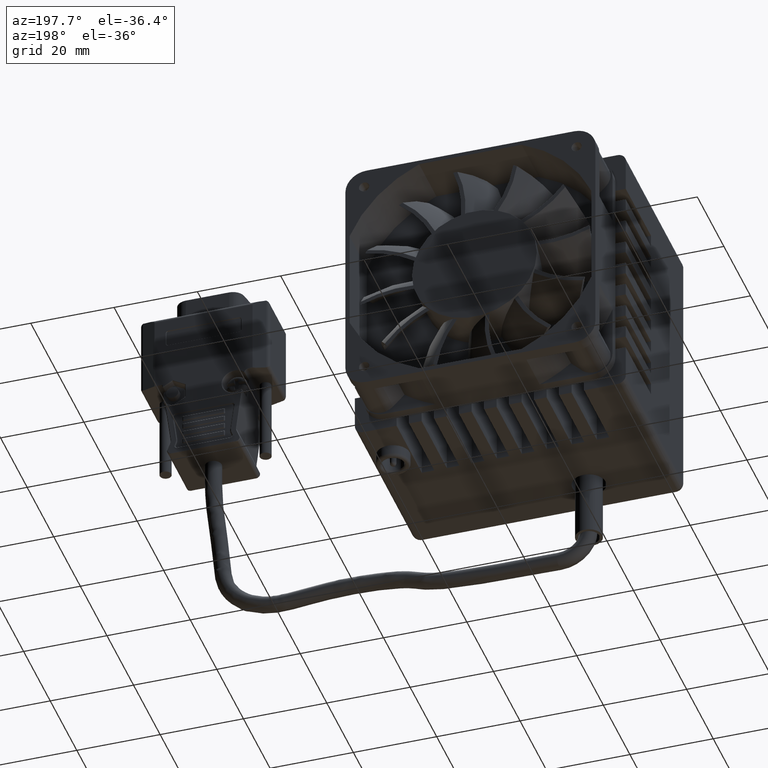
[diagram: clean part render]
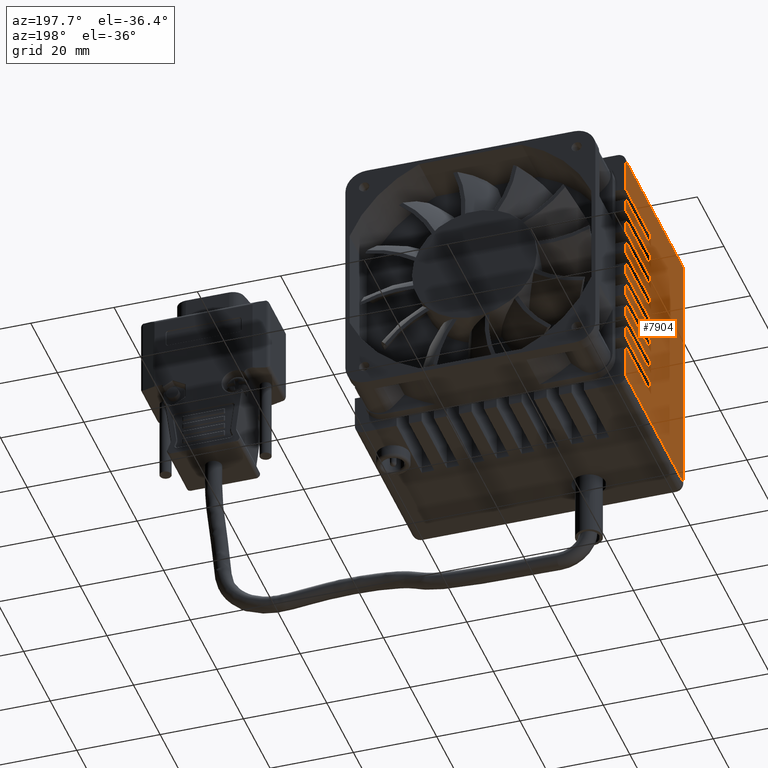
[diagram: same view with one face highlighted and labeled with its STEP entity id]
A machine part, auxiliary view. The second image highlights one B-rep face of the part: STEP entity #7904.
In plain terms, the highlighted planar face has unit normal (-1, 0, 0).
Its self-contained STEP definition (entity closure, byte-faithful):
#65 = ORIENTED_EDGE ( 'NONE', *, *, #32055, .F. ) ;
#122 = EDGE_CURVE ( 'NONE', #25049, #22166, #22653, .T. ) ;
#260 = EDGE_CURVE ( 'NONE', #17363, #12395, #30855, .T. ) ;
#360 = AXIS2_PLACEMENT_3D ( 'NONE', #11790, #5264, #30973 ) ;
#483 = VERTEX_POINT ( 'NONE', #12916 ) ;
#635 = ORIENTED_EDGE ( 'NONE', *, *, #1064, .T. ) ;
#1041 = ORIENTED_EDGE ( 'NONE', *, *, #1189, .T. ) ;
#1064 = EDGE_CURVE ( 'NONE', #11608, #25049, #12203, .T. ) ;
#1189 = EDGE_CURVE ( 'NONE', #23974, #7961, #35549, .T. ) ;
#1286 = LINE ( 'NONE', #13691, #21871 ) ;
#1504 = CARTESIAN_POINT ( 'NONE',  ( -32.50000000000000000, 45.00000000000000000, -7.500000000000000000 ) ) ;
#1684 = VERTEX_POINT ( 'NONE', #12925 ) ;
#2060 = VERTEX_POINT ( 'NONE', #1504 ) ;
#2125 = CARTESIAN_POINT ( 'NONE',  ( -32.50000000000000000, 26.00000000000000000, 4.500000000000000000 ) ) ;
#2454 = VECTOR ( 'NONE', #40085, 1000.000000000000000 ) ;
#2701 = ORIENTED_EDGE ( 'NONE', *, *, #34756, .T. ) ;
#2745 = LINE ( 'NONE', #15372, #4095 ) ;
#2858 = VECTOR ( 'NONE', #25431, 1000.000000000000000 ) ;
#2901 = VECTOR ( 'NONE', #5673, 1000.000000000000000 ) ;
#2943 = EDGE_CURVE ( 'NONE', #6915, #15015, #41395, .T. ) ;
#3039 = DIRECTION ( 'NONE',  ( 0.000000000000000000, 0.000000000000000000, 1.000000000000000000 ) ) ;
#3541 = CARTESIAN_POINT ( 'NONE',  ( -32.50000000000000000, 26.00000000000000000, -4.500000000000000000 ) ) ;
#3613 = EDGE_CURVE ( 'NONE', #28526, #36698, #24064, .T. ) ;
#3784 = VERTEX_POINT ( 'NONE', #41106 ) ;
#4095 = VECTOR ( 'NONE', #28615, 1000.000000000000000 ) ;
#4447 = LINE ( 'NONE', #10555, #36541 ) ;
#4940 = VERTEX_POINT ( 'NONE', #27863 ) ;
#5216 = CARTESIAN_POINT ( 'NONE',  ( -32.50000000000000000, 26.00000000000000000, -6.500000000000000000 ) ) ;
#5264 = DIRECTION ( 'NONE',  ( -1.000000000000000000, 0.000000000000000000, 0.000000000000000000 ) ) ;
#5498 = LINE ( 'NONE', #34336, #19218 ) ;
#5673 = DIRECTION ( 'NONE',  ( 0.000000000000000000, -1.000000000000000000, 0.000000000000000000 ) ) ;
#6203 = LINE ( 'NONE', #19046, #28752 ) ;
#6268 = LINE ( 'NONE', #34907, #2858 ) ;
#6315 = CARTESIAN_POINT ( 'NONE',  ( -32.50000000000000000, 26.00000000000000000, 10.50000000000000000 ) ) ;
#6586 = LINE ( 'NONE', #20286, #19145 ) ;
#6806 = ORIENTED_EDGE ( 'NONE', *, *, #9635, .F. ) ;
#6915 = VERTEX_POINT ( 'NONE', #3541 ) ;
#6960 = VECTOR ( 'NONE', #34460, 1000.000000000000000 ) ;
#7020 = VECTOR ( 'NONE', #38239, 1000.000000000000000 ) ;
#7221 = VECTOR ( 'NONE', #25167, 1000.000000000000000 ) ;
#7460 = CARTESIAN_POINT ( 'NONE',  ( -32.50000000000000000, 26.00000000000000000, -16.50000000000000000 ) ) ;
#7530 = CARTESIAN_POINT ( 'NONE',  ( -32.50000000000000000, 26.00000000000000000, -19.50000000000000000 ) ) ;
#7637 = DIRECTION ( 'NONE',  ( 0.000000000000000000, 0.000000000000000000, -1.000000000000000000 ) ) ;
#7904 = ADVANCED_FACE ( 'NONE', ( #14112 ), #21078, .T. ) ;
#7961 = VERTEX_POINT ( 'NONE', #2125 ) ;
#7988 = EDGE_CURVE ( 'NONE', #8340, #14324, #14958, .T. ) ;
#8156 = EDGE_CURVE ( 'NONE', #2060, #15015, #29046, .T. ) ;
#8196 = CARTESIAN_POINT ( 'NONE',  ( -32.50000000000000000, 26.00000000000000000, -10.50000000000000000 ) ) ;
#8236 = VERTEX_POINT ( 'NONE', #22713 ) ;
#8294 = EDGE_CURVE ( 'NONE', #19701, #38694, #24183, .T. ) ;
#8340 = VERTEX_POINT ( 'NONE', #8196 ) ;
#8385 = LINE ( 'NONE', #40784, #20003 ) ;
#8535 = CARTESIAN_POINT ( 'NONE',  ( -32.50000000000000000, 45.00000000000000000, 32.50000000000000000 ) ) ;
#8611 = VECTOR ( 'NONE', #37750, 1000.000000000000000 ) ;
#8767 = CARTESIAN_POINT ( 'NONE',  ( -32.50000000000000000, 13.00000000000000000, 16.50000000000000000 ) ) ;
#8987 = DIRECTION ( 'NONE',  ( 0.000000000000000000, 1.000000000000000000, 0.000000000000000000 ) ) ;
#9560 = VERTEX_POINT ( 'NONE', #27191 ) ;
#9635 = EDGE_CURVE ( 'NONE', #9560, #14324, #41212, .T. ) ;
#9873 = VECTOR ( 'NONE', #20465, 1000.000000000000000 ) ;
#10151 = ORIENTED_EDGE ( 'NONE', *, *, #25467, .T. ) ;
#10299 = VECTOR ( 'NONE', #20337, 1000.000000000000000 ) ;
#10318 = CARTESIAN_POINT ( 'NONE',  ( -32.50000000000000000, 45.00000000000000000, 13.50000000000000000 ) ) ;
#10491 = ORIENTED_EDGE ( 'NONE', *, *, #15572, .T. ) ;
#10496 = LINE ( 'NONE', #13658, #17984 ) ;
#10515 = VERTEX_POINT ( 'NONE', #41219 ) ;
#10545 = CARTESIAN_POINT ( 'NONE',  ( -32.50000000000000000, 13.00000000000000000, -7.500000000000000000 ) ) ;
#10555 = CARTESIAN_POINT ( 'NONE',  ( -32.50000000000000000, 0.000000000000000000, 30.50000000000000000 ) ) ;
#10597 = LINE ( 'NONE', #23454, #32753 ) ;
#10861 = DIRECTION ( 'NONE',  ( 0.000000000000000000, 0.000000000000000000, 1.000000000000000000 ) ) ;
#10956 = ORIENTED_EDGE ( 'NONE', *, *, #12197, .T. ) ;
#11190 = EDGE_CURVE ( 'NONE', #24607, #33151, #20730, .T. ) ;
#11209 = VERTEX_POINT ( 'NONE', #24924 ) ;
#11295 = VECTOR ( 'NONE', #23401, 1000.000000000000000 ) ;
#11608 = VERTEX_POINT ( 'NONE', #25428 ) ;
#11790 = CARTESIAN_POINT ( 'NONE',  ( -32.50000000000000000, 0.000000000000000000, -32.50000000000000000 ) ) ;
#11857 = CARTESIAN_POINT ( 'NONE',  ( -32.50000000000000000, 45.00000000000000000, 32.50000000000000000 ) ) ;
#11921 = ORIENTED_EDGE ( 'NONE', *, *, #19180, .T. ) ;
#12139 = DIRECTION ( 'NONE',  ( 0.000000000000000000, -1.000000000000000000, 0.000000000000000000 ) ) ;
#12197 = EDGE_CURVE ( 'NONE', #35666, #14911, #36717, .T. ) ;
#12203 = LINE ( 'NONE', #34513, #2901 ) ;
#12317 = CARTESIAN_POINT ( 'NONE',  ( -32.50000000000000000, 26.00000000000000000, -15.50000000000000000 ) ) ;
#12332 = CARTESIAN_POINT ( 'NONE',  ( -32.50000000000000000, 22.50000000000000000, -4.500000000000000000 ) ) ;
#12395 = VERTEX_POINT ( 'NONE', #30426 ) ;
#12461 = ORIENTED_EDGE ( 'NONE', *, *, #28118, .F. ) ;
#12687 = DIRECTION ( 'NONE',  ( 0.000000000000000000, -1.000000000000000000, 0.000000000000000000 ) ) ;
#12734 = DIRECTION ( 'NONE',  ( 0.000000000000000000, 1.000000000000000000, 0.000000000000000000 ) ) ;
#12830 = VECTOR ( 'NONE', #30987, 1000.000000000000000 ) ;
#12916 = CARTESIAN_POINT ( 'NONE',  ( -32.50000000000000000, 45.00000000000000000, 22.50000000000000000 ) ) ;
#12925 = CARTESIAN_POINT ( 'NONE',  ( -32.50000000000000000, 45.00000000000000000, 16.50000000000000000 ) ) ;
#12989 = ORIENTED_EDGE ( 'NONE', *, *, #31139, .F. ) ;
#13143 = CARTESIAN_POINT ( 'NONE',  ( -32.50000000000000000, 22.50000000000000000, 1.500000000000029976 ) ) ;
#13244 = LINE ( 'NONE', #16611, #15052 ) ;
#13658 = CARTESIAN_POINT ( 'NONE',  ( -32.50000000000000000, 13.00000000000000000, -13.50000000000000000 ) ) ;
#13691 = CARTESIAN_POINT ( 'NONE',  ( -32.50000000000000000, 26.00000000000000000, -21.50000000000000000 ) ) ;
#13808 = ORIENTED_EDGE ( 'NONE', *, *, #34358, .T. ) ;
#13937 = CARTESIAN_POINT ( 'NONE',  ( -32.50000000000000000, 26.00000000000000000, -27.50000000000000000 ) ) ;
#14112 = FACE_OUTER_BOUND ( 'NONE', #40168, .T. ) ;
#14324 = VERTEX_POINT ( 'NONE', #36608 ) ;
#14500 = ORIENTED_EDGE ( 'NONE', *, *, #24751, .T. ) ;
#14911 = VERTEX_POINT ( 'NONE', #7460 ) ;
#14957 = ORIENTED_EDGE ( 'NONE', *, *, #38003, .T. ) ;
#14958 = LINE ( 'NONE', #37261, #21905 ) ;
#15015 = VERTEX_POINT ( 'NONE', #31054 ) ;
#15052 = VECTOR ( 'NONE', #16218, 1000.000000000000000 ) ;
#15173 = CARTESIAN_POINT ( 'NONE',  ( -32.50000000000000000, 45.00000000000000000, -16.50000000000000000 ) ) ;
#15230 = LINE ( 'NONE', #11857, #8611 ) ;
#15238 = VECTOR ( 'NONE', #30228, 1000.000000000000000 ) ;
#15372 = CARTESIAN_POINT ( 'NONE',  ( -32.50000000000000000, 33.75000000000000000, -22.50000000000000000 ) ) ;
#15516 = CARTESIAN_POINT ( 'NONE',  ( -32.50000000000000000, 45.00000000000000000, 32.50000000000000000 ) ) ;
#15572 = EDGE_CURVE ( 'NONE', #9560, #35666, #10496, .T. ) ;
#15712 = DIRECTION ( 'NONE',  ( 0.000000000000000000, -1.000000000000000000, 0.000000000000000000 ) ) ;
#15908 = CARTESIAN_POINT ( 'NONE',  ( -32.50000000000000000, 22.50000000000000000, 19.50000000000000000 ) ) ;
#16218 = DIRECTION ( 'NONE',  ( 0.000000000000000000, 1.000000000000000000, 0.000000000000000000 ) ) ;
#16281 = DIRECTION ( 'NONE',  ( 0.000000000000000000, 0.000000000000000000, 1.000000000000000000 ) ) ;
#16551 = VECTOR ( 'NONE', #7637, 1000.000000000000000 ) ;
#16611 = CARTESIAN_POINT ( 'NONE',  ( -32.50000000000000000, 22.50000000000000000, 13.50000000000000000 ) ) ;
#16669 = CARTESIAN_POINT ( 'NONE',  ( -32.50000000000000000, 26.00000000000000000, 1.500000000000000000 ) ) ;
#16791 = ORIENTED_EDGE ( 'NONE', *, *, #8156, .F. ) ;
#16928 = DIRECTION ( 'NONE',  ( 0.000000000000000000, 0.000000000000000000, -1.000000000000000000 ) ) ;
#17089 = VECTOR ( 'NONE', #8987, 1000.000000000000000 ) ;
#17188 = EDGE_CURVE ( 'NONE', #28418, #11209, #28737, .T. ) ;
#17363 = VERTEX_POINT ( 'NONE', #17691 ) ;
#17409 = CARTESIAN_POINT ( 'NONE',  ( -32.50000000000000000, 45.00000000000000000, 19.50000000000000000 ) ) ;
#17691 = CARTESIAN_POINT ( 'NONE',  ( -32.50000000000000000, 45.00000000000000000, -30.50000000000000000 ) ) ;
#17984 = VECTOR ( 'NONE', #36613, 1000.000000000000000 ) ;
#18533 = DIRECTION ( 'NONE',  ( 0.000000000000000000, 0.000000000000000000, 1.000000000000000000 ) ) ;
#18996 = ORIENTED_EDGE ( 'NONE', *, *, #2943, .T. ) ;
#19046 = CARTESIAN_POINT ( 'NONE',  ( -32.50000000000000000, 45.00000000000000000, 32.50000000000000000 ) ) ;
#19145 = VECTOR ( 'NONE', #16281, 1000.000000000000000 ) ;
#19180 = EDGE_CURVE ( 'NONE', #483, #19701, #8385, .T. ) ;
#19218 = VECTOR ( 'NONE', #18533, 1000.000000000000000 ) ;
#19323 = VECTOR ( 'NONE', #26084, 1000.000000000000000 ) ;
#19346 = DIRECTION ( 'NONE',  ( 0.000000000000000000, 0.000000000000000000, 1.000000000000000000 ) ) ;
#19701 = VERTEX_POINT ( 'NONE', #25341 ) ;
#20003 = VECTOR ( 'NONE', #15712, 1000.000000000000000 ) ;
#20036 = ORIENTED_EDGE ( 'NONE', *, *, #35107, .T. ) ;
#20049 = CARTESIAN_POINT ( 'NONE',  ( -32.50000000000000000, 45.00000000000000000, -1.499999999999970024 ) ) ;
#20286 = CARTESIAN_POINT ( 'NONE',  ( -32.50000000000000000, 45.00000000000000000, 32.50000000000000000 ) ) ;
#20337 = DIRECTION ( 'NONE',  ( 0.000000000000000000, 0.000000000000000000, -1.000000000000000000 ) ) ;
#20465 = DIRECTION ( 'NONE',  ( 0.000000000000000000, 1.000000000000000000, 0.000000000000000000 ) ) ;
#20532 = ORIENTED_EDGE ( 'NONE', *, *, #31001, .T. ) ;
#20692 = EDGE_CURVE ( 'NONE', #1684, #10515, #24963, .T. ) ;
#20730 = LINE ( 'NONE', #27253, #38285 ) ;
#21078 = PLANE ( 'NONE',  #360 ) ;
#21088 = CARTESIAN_POINT ( 'NONE',  ( -32.50000000000000000, 45.00000000000000000, 32.50000000000000000 ) ) ;
#21185 = DIRECTION ( 'NONE',  ( 0.000000000000000000, -1.000000000000000000, 0.000000000000000000 ) ) ;
#21211 = ORIENTED_EDGE ( 'NONE', *, *, #3613, .T. ) ;
#21458 = VECTOR ( 'NONE', #12734, 1000.000000000000000 ) ;
#21871 = VECTOR ( 'NONE', #39606, 1000.000000000000000 ) ;
#21905 = VECTOR ( 'NONE', #30547, 1000.000000000000000 ) ;
#21920 = VERTEX_POINT ( 'NONE', #10318 ) ;
#22166 = VERTEX_POINT ( 'NONE', #28822 ) ;
#22653 = LINE ( 'NONE', #33152, #10299 ) ;
#22713 = CARTESIAN_POINT ( 'NONE',  ( -32.50000000000000000, 26.00000000000000000, 13.50000000000000000 ) ) ;
#22807 = ORIENTED_EDGE ( 'NONE', *, *, #8294, .T. ) ;
#23244 = CARTESIAN_POINT ( 'NONE',  ( -32.50000000000000000, 26.00000000000000000, -22.50000000000000000 ) ) ;
#23401 = DIRECTION ( 'NONE',  ( 0.000000000000000000, -1.000000000000000000, 0.000000000000000000 ) ) ;
#23454 = CARTESIAN_POINT ( 'NONE',  ( -32.50000000000000000, 26.00000000000000000, -18.50000000000000000 ) ) ;
#23458 = CARTESIAN_POINT ( 'NONE',  ( -32.50000000000000000, 45.00000000000000000, -19.50000000000000000 ) ) ;
#23744 = CARTESIAN_POINT ( 'NONE',  ( -32.50000000000000000, 45.00000000000000000, 7.500000000000000000 ) ) ;
#23927 = CARTESIAN_POINT ( 'NONE',  ( -32.50000000000000000, 2.000000000000000000, -30.50000000000000000 ) ) ;
#23974 = VERTEX_POINT ( 'NONE', #38669 ) ;
#24064 = LINE ( 'NONE', #13937, #16551 ) ;
#24183 = LINE ( 'NONE', #5216, #39960 ) ;
#24275 = ORIENTED_EDGE ( 'NONE', *, *, #7988, .T. ) ;
#24341 = ORIENTED_EDGE ( 'NONE', *, *, #31699, .T. ) ;
#24582 = ORIENTED_EDGE ( 'NONE', *, *, #11190, .F. ) ;
#24607 = VERTEX_POINT ( 'NONE', #39439 ) ;
#24751 = EDGE_CURVE ( 'NONE', #36770, #28526, #40990, .T. ) ;
#24924 = CARTESIAN_POINT ( 'NONE',  ( -32.50000000000000000, 45.00000000000000000, 1.500000000000029976 ) ) ;
#24963 = LINE ( 'NONE', #8767, #40959 ) ;
#25049 = VERTEX_POINT ( 'NONE', #6315 ) ;
#25167 = DIRECTION ( 'NONE',  ( 0.000000000000000000, 0.000000000000000000, -1.000000000000000000 ) ) ;
#25341 = CARTESIAN_POINT ( 'NONE',  ( -32.50000000000000000, 26.00000000000000000, 22.50000000000000000 ) ) ;
#25354 = ORIENTED_EDGE ( 'NONE', *, *, #20692, .T. ) ;
#25383 = LINE ( 'NONE', #15908, #17089 ) ;
#25428 = CARTESIAN_POINT ( 'NONE',  ( -32.50000000000000000, 45.00000000000000000, 10.50000000000000000 ) ) ;
#25431 = DIRECTION ( 'NONE',  ( 0.000000000000000000, 0.000000000000000000, -1.000000000000000000 ) ) ;
#25467 = EDGE_CURVE ( 'NONE', #10515, #8236, #6268, .T. ) ;
#25590 = LINE ( 'NONE', #35686, #37496 ) ;
#25672 = ORIENTED_EDGE ( 'NONE', *, *, #260, .F. ) ;
#25676 = CARTESIAN_POINT ( 'NONE',  ( -32.50000000000000000, 13.00000000000000000, 4.500000000000000000 ) ) ;
#26026 = EDGE_CURVE ( 'NONE', #31617, #24607, #4447, .T. ) ;
#26084 = DIRECTION ( 'NONE',  ( 0.000000000000000000, -1.000000000000000000, 0.000000000000000000 ) ) ;
#26417 = DIRECTION ( 'NONE',  ( 0.000000000000000000, 0.000000000000000000, -1.000000000000000000 ) ) ;
#26566 = LINE ( 'NONE', #10545, #11295 ) ;
#26821 = CARTESIAN_POINT ( 'NONE',  ( -32.50000000000000000, 22.50000000000000000, 7.500000000000000000 ) ) ;
#26869 = LINE ( 'NONE', #39712, #37307 ) ;
#26952 = EDGE_CURVE ( 'NONE', #38694, #37452, #25383, .T. ) ;
#26972 = ORIENTED_EDGE ( 'NONE', *, *, #30254, .F. ) ;
#27058 = CARTESIAN_POINT ( 'NONE',  ( -32.50000000000000000, 26.00000000000000000, -24.50000000000000000 ) ) ;
#27191 = CARTESIAN_POINT ( 'NONE',  ( -32.50000000000000000, 45.00000000000000000, -13.50000000000000000 ) ) ;
#27253 = CARTESIAN_POINT ( 'NONE',  ( -32.50000000000000000, 2.000000000000000000, -16.25000000000000000 ) ) ;
#27528 = EDGE_CURVE ( 'NONE', #36770, #31087, #6586, .T. ) ;
#27690 = CARTESIAN_POINT ( 'NONE',  ( -32.50000000000000000, 26.00000000000000000, -13.50000000000000000 ) ) ;
#27863 = CARTESIAN_POINT ( 'NONE',  ( -32.50000000000000000, 26.00000000000000000, -7.500000000000000000 ) ) ;
#27867 = VERTEX_POINT ( 'NONE', #23744 ) ;
#28118 = EDGE_CURVE ( 'NONE', #23974, #27867, #28985, .T. ) ;
#28418 = VERTEX_POINT ( 'NONE', #16669 ) ;
#28526 = VERTEX_POINT ( 'NONE', #7530 ) ;
#28615 = DIRECTION ( 'NONE',  ( 0.000000000000000000, 1.000000000000000000, -3.947459643111670438E-16 ) ) ;
#28737 = LINE ( 'NONE', #13143, #21458 ) ;
#28752 = VECTOR ( 'NONE', #3039, 1000.000000000000000 ) ;
#28822 = CARTESIAN_POINT ( 'NONE',  ( -32.50000000000000000, 26.00000000000000000, 7.500000000000000000 ) ) ;
#28847 = VECTOR ( 'NONE', #12687, 1000.000000000000000 ) ;
#28985 = LINE ( 'NONE', #15516, #7020 ) ;
#29046 = LINE ( 'NONE', #29241, #31905 ) ;
#29119 = CARTESIAN_POINT ( 'NONE',  ( -32.50000000000000000, 13.00000000000000000, -1.499999999999970024 ) ) ;
#29241 = CARTESIAN_POINT ( 'NONE',  ( -32.50000000000000000, 45.00000000000000000, 32.50000000000000000 ) ) ;
#29353 = LINE ( 'NONE', #12317, #7221 ) ;
#29417 = ORIENTED_EDGE ( 'NONE', *, *, #36554, .T. ) ;
#29770 = LINE ( 'NONE', #26821, #2454 ) ;
#30020 = ORIENTED_EDGE ( 'NONE', *, *, #41002, .F. ) ;
#30065 = DIRECTION ( 'NONE',  ( 0.000000000000000000, 0.000000000000000000, -1.000000000000000000 ) ) ;
#30228 = DIRECTION ( 'NONE',  ( 0.000000000000000000, 0.000000000000000000, 1.000000000000000000 ) ) ;
#30254 = EDGE_CURVE ( 'NONE', #11608, #21920, #26869, .T. ) ;
#30327 = CARTESIAN_POINT ( 'NONE',  ( -32.50000000000000000, 26.00000000000000000, 19.50000000000000000 ) ) ;
#30426 = CARTESIAN_POINT ( 'NONE',  ( -32.50000000000000000, 45.00000000000000000, -22.50000000000000000 ) ) ;
#30491 = ORIENTED_EDGE ( 'NONE', *, *, #36619, .T. ) ;
#30547 = DIRECTION ( 'NONE',  ( 0.000000000000000000, 1.000000000000000000, 0.000000000000000000 ) ) ;
#30855 = LINE ( 'NONE', #8535, #15238 ) ;
#30973 = DIRECTION ( 'NONE',  ( 0.000000000000000000, 0.000000000000000000, 1.000000000000000000 ) ) ;
#30987 = DIRECTION ( 'NONE',  ( 0.000000000000000000, 0.000000000000000000, 1.000000000000000000 ) ) ;
#31001 = EDGE_CURVE ( 'NONE', #4940, #8340, #1286, .T. ) ;
#31054 = CARTESIAN_POINT ( 'NONE',  ( -32.50000000000000000, 45.00000000000000000, -4.500000000000000000 ) ) ;
#31087 = VERTEX_POINT ( 'NONE', #15173 ) ;
#31122 = ORIENTED_EDGE ( 'NONE', *, *, #122, .T. ) ;
#31139 = EDGE_CURVE ( 'NONE', #1684, #37452, #5498, .T. ) ;
#31617 = VERTEX_POINT ( 'NONE', #32104 ) ;
#31699 = EDGE_CURVE ( 'NONE', #22166, #27867, #29770, .T. ) ;
#31709 = DIRECTION ( 'NONE',  ( 0.000000000000000000, 1.000000000000000000, 0.000000000000000000 ) ) ;
#31905 = VECTOR ( 'NONE', #19346, 1000.000000000000000 ) ;
#32055 = EDGE_CURVE ( 'NONE', #33151, #17363, #39391, .T. ) ;
#32104 = CARTESIAN_POINT ( 'NONE',  ( -32.50000000000000000, 45.00000000000000000, 30.50000000000000000 ) ) ;
#32753 = VECTOR ( 'NONE', #16928, 1000.000000000000000 ) ;
#33151 = VERTEX_POINT ( 'NONE', #23927 ) ;
#33152 = CARTESIAN_POINT ( 'NONE',  ( -32.50000000000000000, 26.00000000000000000, -12.50000000000000000 ) ) ;
#33288 = CARTESIAN_POINT ( 'NONE',  ( -32.50000000000000000, 0.000000000000000000, -30.50000000000000000 ) ) ;
#33463 = CARTESIAN_POINT ( 'NONE',  ( -32.50000000000000000, 13.00000000000000000, -19.50000000000000000 ) ) ;
#34336 = CARTESIAN_POINT ( 'NONE',  ( -32.50000000000000000, 45.00000000000000000, 32.50000000000000000 ) ) ;
#34358 = EDGE_CURVE ( 'NONE', #3784, #6915, #10597, .T. ) ;
#34392 = DIRECTION ( 'NONE',  ( 0.000000000000000000, 0.000000000000000000, -1.000000000000000000 ) ) ;
#34460 = DIRECTION ( 'NONE',  ( 0.000000000000000000, 1.000000000000000000, 0.000000000000000000 ) ) ;
#34513 = CARTESIAN_POINT ( 'NONE',  ( -32.50000000000000000, 13.00000000000000000, 10.50000000000000000 ) ) ;
#34665 = VERTEX_POINT ( 'NONE', #20049 ) ;
#34756 = EDGE_CURVE ( 'NONE', #2060, #4940, #26566, .T. ) ;
#34907 = CARTESIAN_POINT ( 'NONE',  ( -32.50000000000000000, 26.00000000000000000, -9.500000000000000000 ) ) ;
#35107 = EDGE_CURVE ( 'NONE', #8236, #21920, #13244, .T. ) ;
#35113 = VECTOR ( 'NONE', #12139, 1000.000000000000000 ) ;
#35423 = LINE ( 'NONE', #29119, #28847 ) ;
#35549 = LINE ( 'NONE', #25676, #19323 ) ;
#35570 = VECTOR ( 'NONE', #26417, 1000.000000000000000 ) ;
#35666 = VERTEX_POINT ( 'NONE', #27690 ) ;
#35686 = CARTESIAN_POINT ( 'NONE',  ( -32.50000000000000000, 22.50000000000000000, -16.50000000000000000 ) ) ;
#36472 = ORIENTED_EDGE ( 'NONE', *, *, #36844, .F. ) ;
#36498 = ORIENTED_EDGE ( 'NONE', *, *, #27528, .F. ) ;
#36541 = VECTOR ( 'NONE', #39844, 1000.000000000000000 ) ;
#36554 = EDGE_CURVE ( 'NONE', #14911, #31087, #25590, .T. ) ;
#36608 = CARTESIAN_POINT ( 'NONE',  ( -32.50000000000000000, 45.00000000000000000, -10.50000000000000000 ) ) ;
#36613 = DIRECTION ( 'NONE',  ( 0.000000000000000000, -1.000000000000000000, 0.000000000000000000 ) ) ;
#36619 = EDGE_CURVE ( 'NONE', #7961, #28418, #29353, .T. ) ;
#36698 = VERTEX_POINT ( 'NONE', #23244 ) ;
#36717 = LINE ( 'NONE', #27058, #35570 ) ;
#36770 = VERTEX_POINT ( 'NONE', #23458 ) ;
#36844 = EDGE_CURVE ( 'NONE', #34665, #11209, #15230, .T. ) ;
#37261 = CARTESIAN_POINT ( 'NONE',  ( -32.50000000000000000, 22.50000000000000000, -10.50000000000000000 ) ) ;
#37307 = VECTOR ( 'NONE', #10861, 1000.000000000000000 ) ;
#37452 = VERTEX_POINT ( 'NONE', #17409 ) ;
#37496 = VECTOR ( 'NONE', #31709, 1000.000000000000000 ) ;
#37723 = ORIENTED_EDGE ( 'NONE', *, *, #17188, .T. ) ;
#37750 = DIRECTION ( 'NONE',  ( 0.000000000000000000, 0.000000000000000000, 1.000000000000000000 ) ) ;
#38003 = EDGE_CURVE ( 'NONE', #34665, #3784, #35423, .T. ) ;
#38239 = DIRECTION ( 'NONE',  ( 0.000000000000000000, 0.000000000000000000, 1.000000000000000000 ) ) ;
#38285 = VECTOR ( 'NONE', #34392, 1000.000000000000000 ) ;
#38669 = CARTESIAN_POINT ( 'NONE',  ( -32.50000000000000000, 45.00000000000000000, 4.500000000000000000 ) ) ;
#38694 = VERTEX_POINT ( 'NONE', #30327 ) ;
#38818 = ORIENTED_EDGE ( 'NONE', *, *, #26026, .F. ) ;
#39391 = LINE ( 'NONE', #33288, #9873 ) ;
#39439 = CARTESIAN_POINT ( 'NONE',  ( -32.50000000000000000, 2.000000000000000000, 30.50000000000000000 ) ) ;
#39606 = DIRECTION ( 'NONE',  ( 0.000000000000000000, 0.000000000000000000, -1.000000000000000000 ) ) ;
#39712 = CARTESIAN_POINT ( 'NONE',  ( -32.50000000000000000, 45.00000000000000000, 32.50000000000000000 ) ) ;
#39844 = DIRECTION ( 'NONE',  ( 0.000000000000000000, -1.000000000000000000, 0.000000000000000000 ) ) ;
#39960 = VECTOR ( 'NONE', #30065, 1000.000000000000000 ) ;
#40044 = EDGE_CURVE ( 'NONE', #36698, #12395, #2745, .T. ) ;
#40085 = DIRECTION ( 'NONE',  ( 0.000000000000000000, 1.000000000000000000, 0.000000000000000000 ) ) ;
#40168 = EDGE_LOOP ( 'NONE', ( #24582, #38818, #30020, #11921, #22807, #41350, #12989, #25354, #10151, #20036, #26972, #635, #31122, #24341, #12461, #1041, #30491, #37723, #36472, #14957, #13808, #18996, #16791, #2701, #20532, #24275, #6806, #10491, #10956, #29417, #36498, #14500, #21211, #41551, #25672, #65 ) ) ;
#40784 = CARTESIAN_POINT ( 'NONE',  ( -32.50000000000000000, 13.00000000000000000, 22.50000000000000000 ) ) ;
#40959 = VECTOR ( 'NONE', #21185, 1000.000000000000000 ) ;
#40990 = LINE ( 'NONE', #33463, #35113 ) ;
#41002 = EDGE_CURVE ( 'NONE', #483, #31617, #6203, .T. ) ;
#41106 = CARTESIAN_POINT ( 'NONE',  ( -32.50000000000000000, 26.00000000000000000, -1.499999999999970024 ) ) ;
#41212 = LINE ( 'NONE', #21088, #12830 ) ;
#41219 = CARTESIAN_POINT ( 'NONE',  ( -32.50000000000000000, 26.00000000000000000, 16.50000000000000000 ) ) ;
#41350 = ORIENTED_EDGE ( 'NONE', *, *, #26952, .T. ) ;
#41395 = LINE ( 'NONE', #12332, #6960 ) ;
#41551 = ORIENTED_EDGE ( 'NONE', *, *, #40044, .T. ) ;